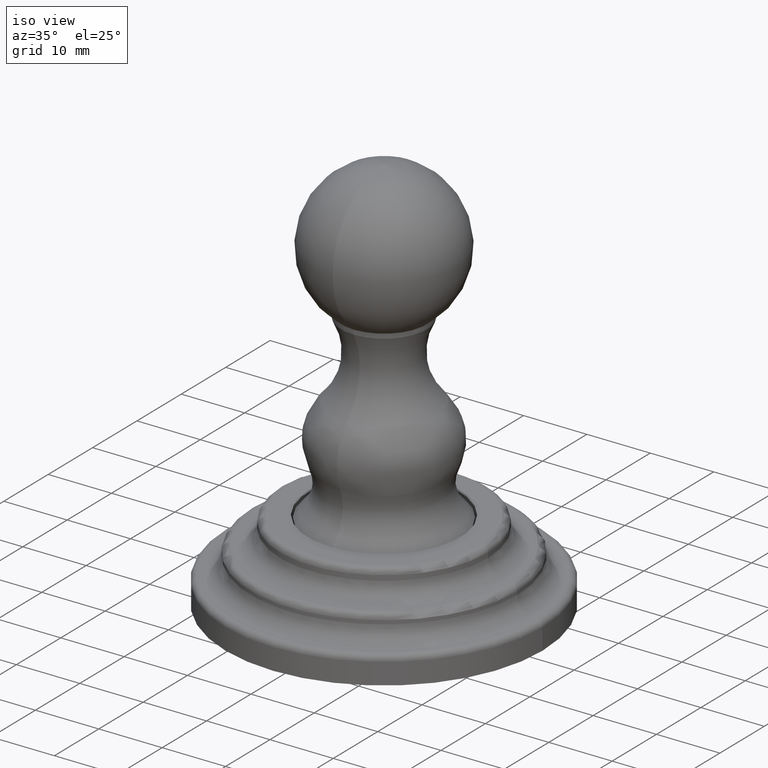
[diagram: clean part render]
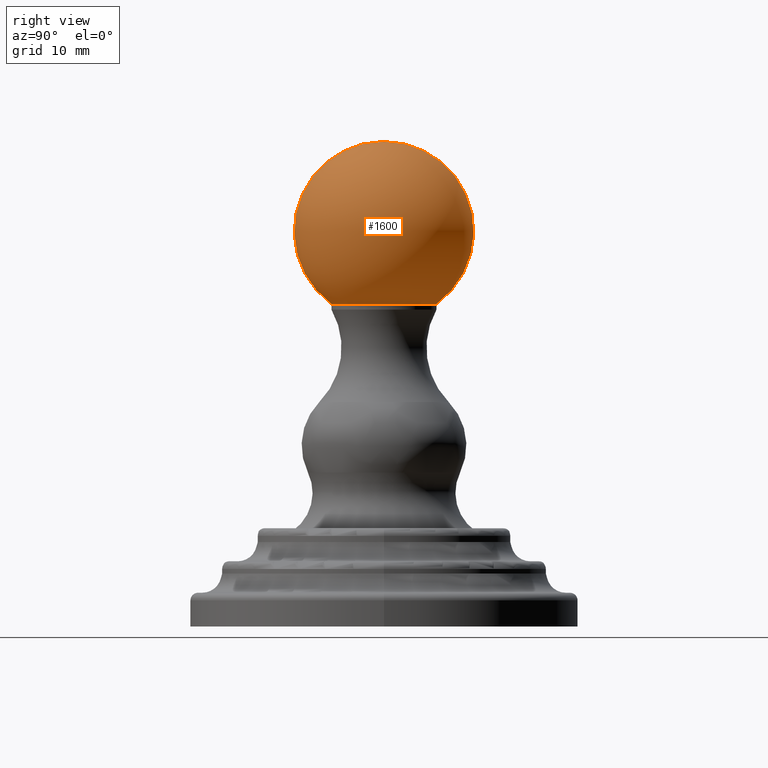
[diagram: tour spotlight — one face highlighted and labeled with its STEP entity id]
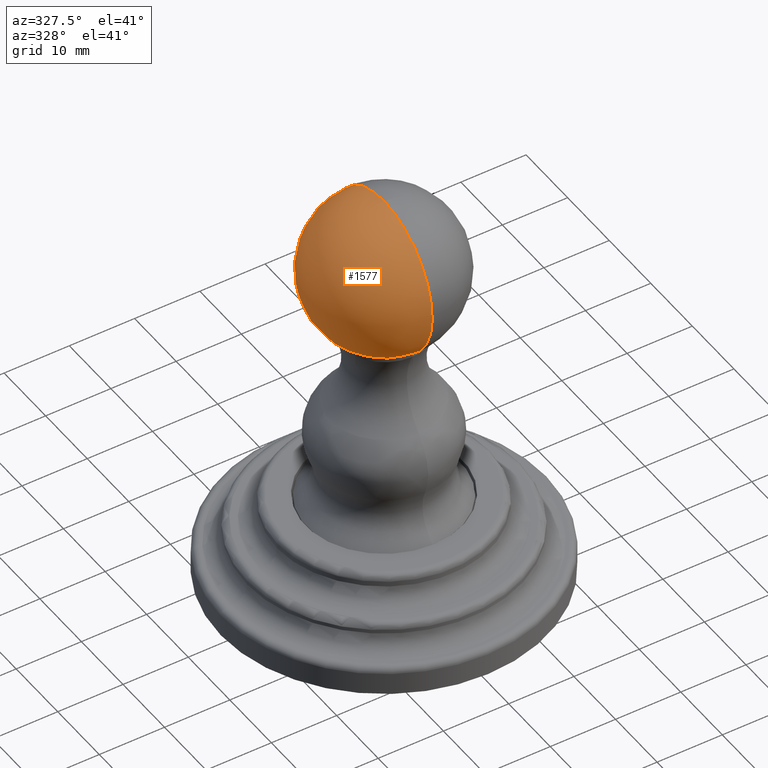
[diagram: tour spotlight — one face highlighted and labeled with its STEP entity id]
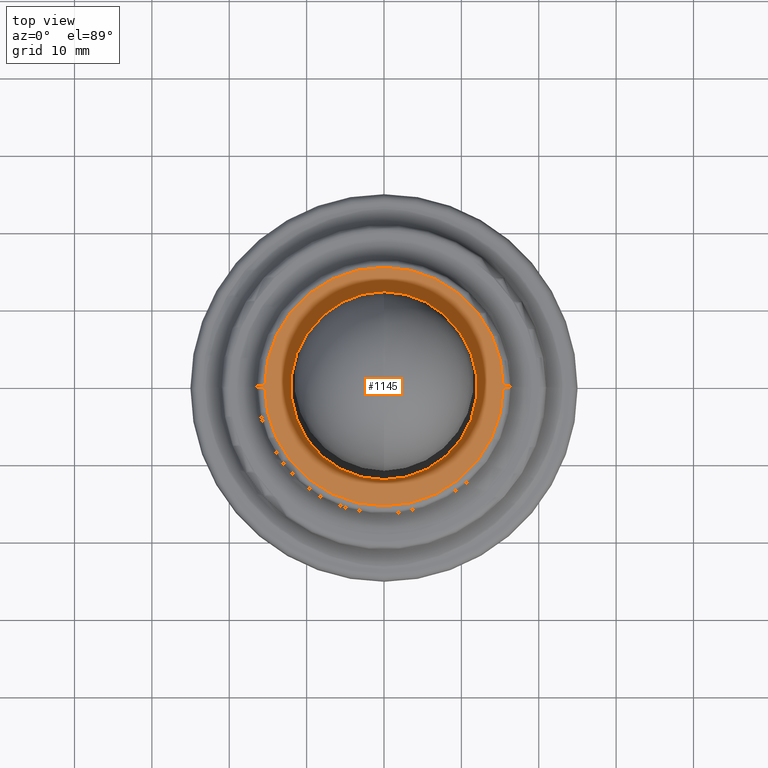
[diagram: tour spotlight — one face highlighted and labeled with its STEP entity id]
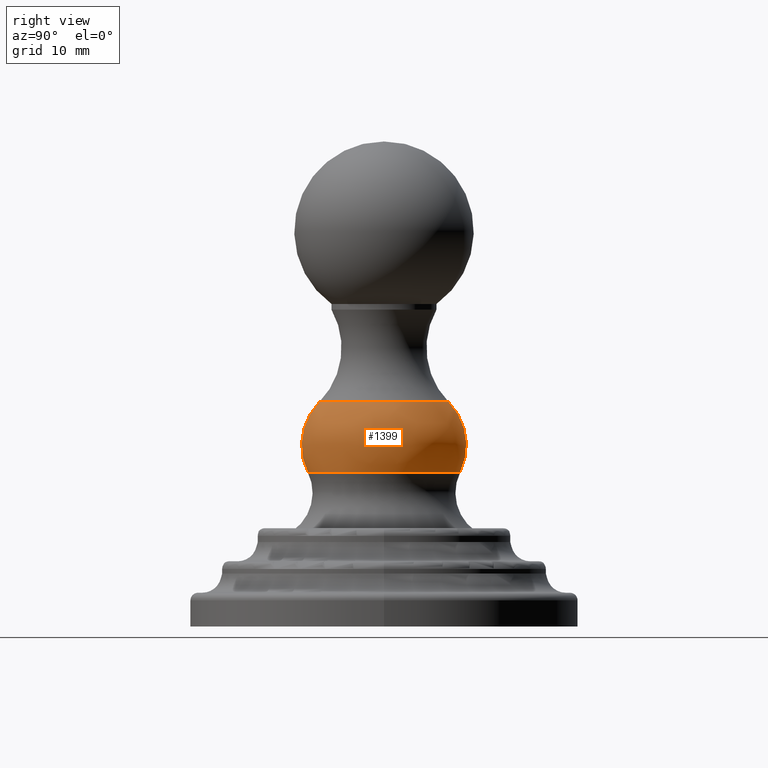
[diagram: tour spotlight — one face highlighted and labeled with its STEP entity id]
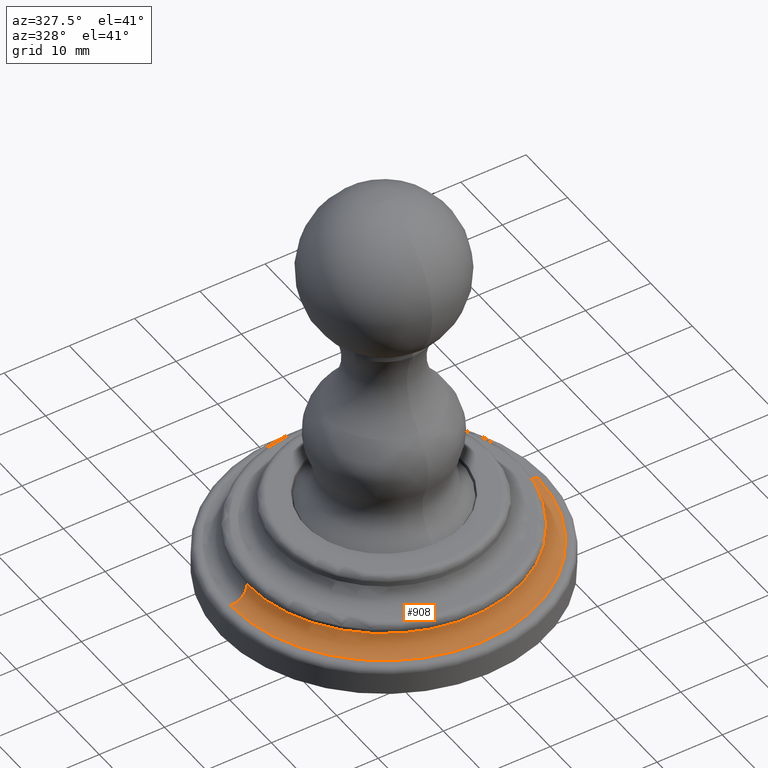
[diagram: tour spotlight — one face highlighted and labeled with its STEP entity id]
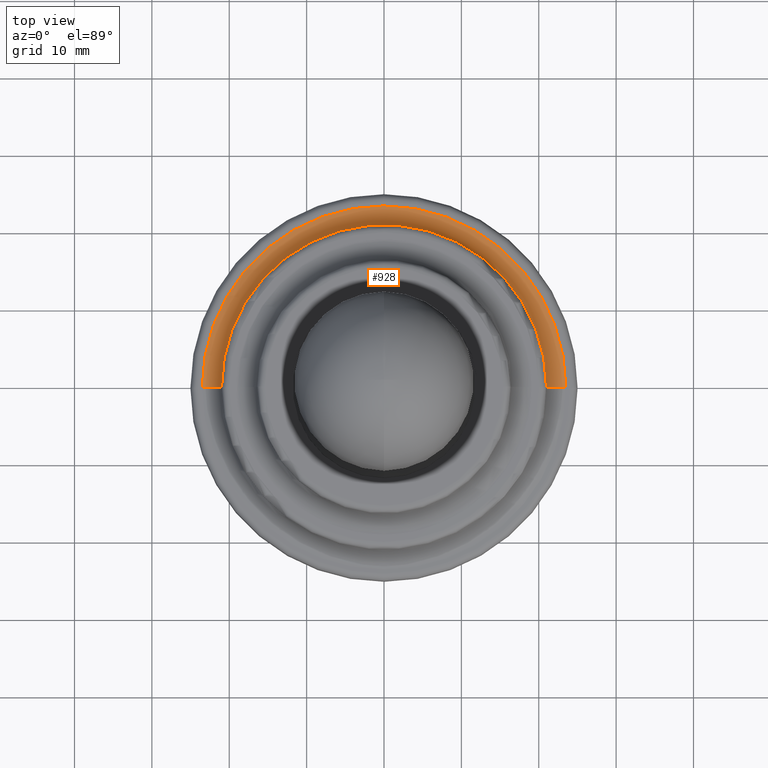
[diagram: tour spotlight — one face highlighted and labeled with its STEP entity id]
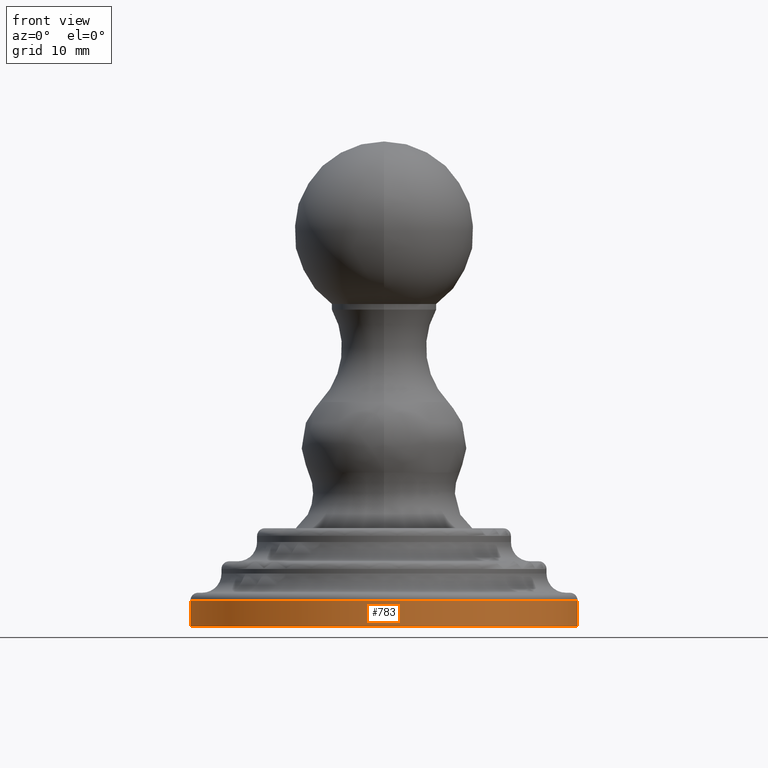
[diagram: tour spotlight — one face highlighted and labeled with its STEP entity id]
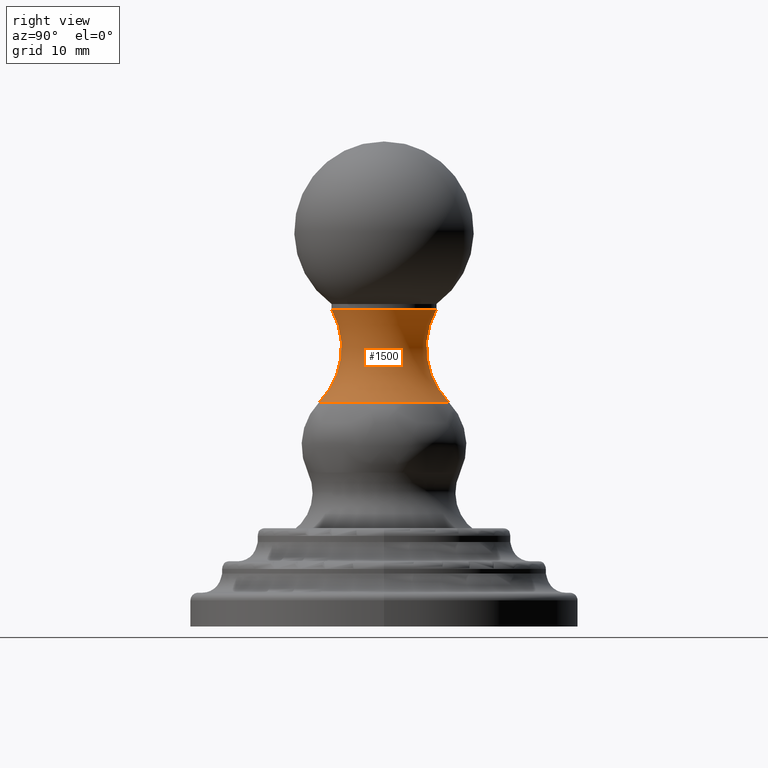
[diagram: tour spotlight — one face highlighted and labeled with its STEP entity id]
A machine part: a face-by-face anatomy tour. The part has 35 B-rep faces; the first image is the clean iso view, then the 8 largest visible faces are spotlighted one at a time (largest first), each with its STEP entity span.

Face 1 — right view, entity #1600. In plain terms, the highlighted spherical surface has radius 11.6 mm.
Definition (entity closure, byte-faithful):
#658=CARTESIAN_POINT('',(0.E0,0.E0,2.011551179109E0));
#659=DIRECTION('',(1.E0,0.E0,0.E0));
#660=DIRECTION('',(0.E0,5.848925070044E-1,-8.111108156412E-1));
#661=AXIS2_PLACEMENT_3D('',#658,#659,#660);
#666=CARTESIAN_POINT('',(0.E0,0.E0,2.011551179109E0));
#667=DIRECTION('',(-1.E0,0.E0,0.E0));
#668=DIRECTION('',(0.E0,-5.848925070044E-1,-8.111108156412E-1));
#669=AXIS2_PLACEMENT_3D('',#666,#667,#668);
#682=CARTESIAN_POINT('',(0.E0,0.E0,1.641122617635E0));
#683=DIRECTION('',(0.E0,0.E0,-1.E0));
#684=DIRECTION('',(0.E0,1.E0,0.E0));
#685=AXIS2_PLACEMENT_3D('',#682,#683,#684);
#750=CARTESIAN_POINT('',(0.E0,2.671162630414E-1,1.641122617635E0));
#751=VERTEX_POINT('',#750);
#752=CARTESIAN_POINT('',(0.E0,0.E0,2.468244092495E0));
#753=VERTEX_POINT('',#752);
#762=CARTESIAN_POINT('',(0.E0,-2.671162630414E-1,1.641122617635E0));
#763=VERTEX_POINT('',#762);
#1590=CARTESIAN_POINT('',(0.E0,0.E0,2.011551179109E0));
#1591=DIRECTION('',(0.E0,0.E0,-1.E0));
#1592=DIRECTION('',(0.E0,-1.E0,0.E0));
#1593=AXIS2_PLACEMENT_3D('',#1590,#1591,#1592);
#1594=SPHERICAL_SURFACE('',#1593,4.566929133858E-1);
#1595=ORIENTED_EDGE('',*,*,#1570,.F.);
#1596=ORIENTED_EDGE('',*,*,#1523,.T.);
#1597=ORIENTED_EDGE('',*,*,#1572,.T.);
#1598=EDGE_LOOP('',(#1595,#1596,#1597));
#1599=FACE_OUTER_BOUND('',#1598,.F.);
#662=CIRCLE('',#661,4.566929133858E-1);
#670=CIRCLE('',#669,4.566929133858E-1);
#686=CIRCLE('',#685,2.671162630414E-1);
#1523=EDGE_CURVE('',#751,#763,#686,.T.);
#1570=EDGE_CURVE('',#751,#753,#662,.T.);
#1572=EDGE_CURVE('',#763,#753,#670,.T.);
#1600=ADVANCED_FACE('',(#1599),#1594,.T.);

Face 2 — auxiliary view, entity #1577. In plain terms, the highlighted spherical surface has radius 11.6 mm.
Definition (entity closure, byte-faithful):
#658=CARTESIAN_POINT('',(0.E0,0.E0,2.011551179109E0));
#659=DIRECTION('',(1.E0,0.E0,0.E0));
#660=DIRECTION('',(0.E0,5.848925070044E-1,-8.111108156412E-1));
#661=AXIS2_PLACEMENT_3D('',#658,#659,#660);
#666=CARTESIAN_POINT('',(0.E0,0.E0,2.011551179109E0));
#667=DIRECTION('',(-1.E0,0.E0,0.E0));
#668=DIRECTION('',(0.E0,-5.848925070044E-1,-8.111108156412E-1));
#669=AXIS2_PLACEMENT_3D('',#666,#667,#668);
#674=CARTESIAN_POINT('',(0.E0,0.E0,1.641122617635E0));
#675=DIRECTION('',(0.E0,0.E0,1.E0));
#676=DIRECTION('',(0.E0,1.E0,0.E0));
#677=AXIS2_PLACEMENT_3D('',#674,#675,#676);
#750=CARTESIAN_POINT('',(0.E0,2.671162630414E-1,1.641122617635E0));
#751=VERTEX_POINT('',#750);
#752=CARTESIAN_POINT('',(0.E0,0.E0,2.468244092495E0));
#753=VERTEX_POINT('',#752);
#762=CARTESIAN_POINT('',(0.E0,-2.671162630414E-1,1.641122617635E0));
#763=VERTEX_POINT('',#762);
#1565=CARTESIAN_POINT('',(0.E0,0.E0,2.011551179109E0));
#1566=DIRECTION('',(0.E0,0.E0,-1.E0));
#1567=DIRECTION('',(0.E0,-1.E0,0.E0));
#1568=AXIS2_PLACEMENT_3D('',#1565,#1566,#1567);
#1569=SPHERICAL_SURFACE('',#1568,4.566929133858E-1);
#1571=ORIENTED_EDGE('',*,*,#1570,.T.);
#1573=ORIENTED_EDGE('',*,*,#1572,.F.);
#1574=ORIENTED_EDGE('',*,*,#1546,.F.);
#1575=EDGE_LOOP('',(#1571,#1573,#1574));
#1576=FACE_OUTER_BOUND('',#1575,.F.);
#662=CIRCLE('',#661,4.566929133858E-1);
#670=CIRCLE('',#669,4.566929133858E-1);
#678=CIRCLE('',#677,2.671162630414E-1);
#1546=EDGE_CURVE('',#751,#763,#678,.T.);
#1570=EDGE_CURVE('',#751,#753,#662,.T.);
#1572=EDGE_CURVE('',#763,#753,#670,.T.);
#1577=ADVANCED_FACE('',(#1576),#1569,.T.);

Face 3 — top view, entity #1145. In plain terms, the highlighted planar face has unit normal (0, 0, 1).
Definition (entity closure, byte-faithful):
#416=CARTESIAN_POINT('',(-1.230769033143E-14,0.E0,5.E-1));
#417=DIRECTION('',(0.E0,0.E0,1.E0));
#418=DIRECTION('',(-1.E0,0.E0,0.E0));
#419=AXIS2_PLACEMENT_3D('',#416,#417,#418);
#424=CARTESIAN_POINT('',(-1.230769033143E-14,0.E0,5.E-1));
#425=DIRECTION('',(0.E0,0.E0,1.E0));
#426=DIRECTION('',(1.E0,0.E0,0.E0));
#427=AXIS2_PLACEMENT_3D('',#424,#425,#426);
#432=CARTESIAN_POINT('',(0.E0,0.E0,5.E-1));
#433=DIRECTION('',(0.E0,0.E0,1.E0));
#434=DIRECTION('',(0.E0,-1.E0,0.E0));
#435=AXIS2_PLACEMENT_3D('',#432,#433,#434);
#440=CARTESIAN_POINT('',(0.E0,0.E0,5.E-1));
#441=DIRECTION('',(0.E0,0.E0,1.E0));
#442=DIRECTION('',(0.E0,1.E0,0.E0));
#443=AXIS2_PLACEMENT_3D('',#440,#441,#442);
#722=CARTESIAN_POINT('',(-6.07E-1,0.E0,5.E-1));
#723=CARTESIAN_POINT('',(6.07E-1,0.E0,5.E-1));
#724=VERTEX_POINT('',#722);
#725=VERTEX_POINT('',#723);
#738=CARTESIAN_POINT('',(0.E0,-4.74E-1,5.E-1));
#739=CARTESIAN_POINT('',(0.E0,4.74E-1,5.E-1));
#740=VERTEX_POINT('',#738);
#741=VERTEX_POINT('',#739);
#1129=CARTESIAN_POINT('',(-1.230769033143E-14,0.E0,5.E-1));
#1130=DIRECTION('',(0.E0,0.E0,1.E0));
#1131=DIRECTION('',(-1.E0,0.E0,0.E0));
#1132=AXIS2_PLACEMENT_3D('',#1129,#1130,#1131);
#1133=PLANE('',#1132);
#1135=ORIENTED_EDGE('',*,*,#1134,.F.);
#1136=ORIENTED_EDGE('',*,*,#1112,.F.);
#1137=EDGE_LOOP('',(#1135,#1136));
#1138=FACE_OUTER_BOUND('',#1137,.F.);
#1140=ORIENTED_EDGE('',*,*,#1139,.T.);
#1142=ORIENTED_EDGE('',*,*,#1141,.T.);
#1143=EDGE_LOOP('',(#1140,#1142));
#1144=FACE_BOUND('',#1143,.F.);
#420=CIRCLE('',#419,6.07E-1);
#428=CIRCLE('',#427,6.07E-1);
#436=CIRCLE('',#435,4.74E-1);
#444=CIRCLE('',#443,4.74E-1);
#1112=EDGE_CURVE('',#725,#724,#428,.T.);
#1134=EDGE_CURVE('',#724,#725,#420,.T.);
#1139=EDGE_CURVE('',#740,#741,#436,.T.);
#1141=EDGE_CURVE('',#741,#740,#444,.T.);
#1145=ADVANCED_FACE('',(#1138,#1144),#1133,.T.);

Face 4 — right view, entity #1399. In plain terms, the highlighted face is a freeform B-spline surface patch.
Definition (entity closure, byte-faithful):
#564=CARTESIAN_POINT('',(0.E0,0.E0,7.839705129660E-1));
#565=DIRECTION('',(0.E0,0.E0,-1.E0));
#566=DIRECTION('',(0.E0,1.E0,0.E0));
#567=AXIS2_PLACEMENT_3D('',#564,#565,#566);
#572=CARTESIAN_POINT('',(0.E0,1.041910873487E-1,9.220305738123E-1));
#573=DIRECTION('',(1.E0,0.E0,0.E0));
#574=DIRECTION('',(0.E0,8.988088988744E-1,-4.383406931876E-1));
#575=AXIS2_PLACEMENT_3D('',#572,#573,#574);
#580=CARTESIAN_POINT('',(0.E0,-1.041910873487E-1,9.220305738123E-1));
#581=DIRECTION('',(-1.E0,0.E0,0.E0));
#582=DIRECTION('',(0.E0,-8.988088988744E-1,-4.383406931876E-1));
#583=AXIS2_PLACEMENT_3D('',#580,#581,#582);
#620=CARTESIAN_POINT('',(0.E0,0.E0,1.142747808153E0));
#621=DIRECTION('',(0.E0,0.E0,-1.E0));
#622=DIRECTION('',(0.E0,1.E0,0.E0));
#623=AXIS2_PLACEMENT_3D('',#620,#621,#622);
#743=CARTESIAN_POINT('',(0.E0,3.872805043167E-1,7.839705129660E-1));
#745=VERTEX_POINT('',#743);
#746=CARTESIAN_POINT('',(0.E0,3.288777599953E-1,1.142747808153E0));
#747=VERTEX_POINT('',#746);
#755=CARTESIAN_POINT('',(0.E0,-3.872805043167E-1,7.839705129660E-1));
#757=VERTEX_POINT('',#755);
#758=CARTESIAN_POINT('',(0.E0,-3.288777599953E-1,1.142747808153E0));
#759=VERTEX_POINT('',#758);
#1361=CARTESIAN_POINT('',(-2.030517335353E-2,3.227414884302E-1,
1.148208805471E0));
#1362=CARTESIAN_POINT('',(-2.681549288007E-2,4.262200540926E-1,
1.047729824582E0));
#1363=CARTESIAN_POINT('',(-2.827208170864E-2,4.493718705474E-1,
9.052233504963E-1));
#1364=CARTESIAN_POINT('',(-2.409889000515E-2,3.830408878742E-1,
7.770476561504E-1));
#1365=CARTESIAN_POINT('',(1.783094859161E-1,3.352372636298E-1,
1.148208805471E0));
#1366=CARTESIAN_POINT('',(2.354797305486E-1,4.427222707968E-1,
1.047729824582E0));
#1367=CARTESIAN_POINT('',(2.482707370912E-1,4.667704699736E-1,
9.052233504963E-1));
#1368=CARTESIAN_POINT('',(2.116239351003E-1,3.978713109798E-1,
7.770476561504E-1));
#1369=CARTESIAN_POINT('',(3.233796042100E-1,1.990073548255E-1,
1.148208805471E0));
#1370=CARTESIAN_POINT('',(4.270627649059E-1,2.628138264811E-1,
1.047729824582E0));
#1371=CARTESIAN_POINT('',(4.502603565088E-1,2.770895918142E-1,
9.052233504963E-1));
#1372=CARTESIAN_POINT('',(3.837982260029E-1,2.361888899275E-1,
7.770476561504E-1));
#1373=CARTESIAN_POINT('',(3.233796042100E-1,0.E0,1.148208805471E0));
#1374=CARTESIAN_POINT('',(4.270627649059E-1,0.E0,1.047729824582E0));
#1375=CARTESIAN_POINT('',(4.502603565088E-1,0.E0,9.052233504963E-1));
#1376=CARTESIAN_POINT('',(3.837982260029E-1,0.E0,7.770476561504E-1));
#1377=CARTESIAN_POINT('',(3.233796042100E-1,-1.990073548255E-1,
1.148208805471E0));
#1378=CARTESIAN_POINT('',(4.270627649059E-1,-2.628138264811E-1,
1.047729824582E0));
#1379=CARTESIAN_POINT('',(4.502603565088E-1,-2.770895918142E-1,
9.052233504963E-1));
#1380=CARTESIAN_POINT('',(3.837982260029E-1,-2.361888899275E-1,
7.770476561504E-1));
#1381=CARTESIAN_POINT('',(1.783094859161E-1,-3.352372636298E-1,
1.148208805471E0));
#1382=CARTESIAN_POINT('',(2.354797305486E-1,-4.427222707968E-1,
1.047729824582E0));
#1383=CARTESIAN_POINT('',(2.482707370912E-1,-4.667704699736E-1,
9.052233504963E-1));
#1384=CARTESIAN_POINT('',(2.116239351003E-1,-3.978713109798E-1,
7.770476561504E-1));
#1385=CARTESIAN_POINT('',(-2.030517335353E-2,-3.227414884302E-1,
1.148208805471E0));
#1386=CARTESIAN_POINT('',(-2.681549288007E-2,-4.262200540926E-1,
1.047729824582E0));
#1387=CARTESIAN_POINT('',(-2.827208170864E-2,-4.493718705474E-1,
9.052233504963E-1));
#1388=CARTESIAN_POINT('',(-2.409889000515E-2,-3.830408878742E-1,
7.770476561504E-1));
#1389=(BOUNDED_SURFACE()B_SPLINE_SURFACE(3,3,((#1361,#1362,#1363,#1364),(#1365,
#1366,#1367,#1368),(#1369,#1370,#1371,#1372),(#1373,#1374,#1375,#1376),(#1377,
#1378,#1379,#1380),(#1381,#1382,#1383,#1384),(#1385,#1386,#1387,#1388)),
.UNSPECIFIED.,.F.,.F.,.F.)B_SPLINE_SURFACE_WITH_KNOTS((4,3,4),(4,4),(0.E0,1.E0,
2.E0),(0.E0,1.E0),.UNSPECIFIED.)GEOMETRIC_REPRESENTATION_ITEM()RATIONAL_B_SPLINE_SURFACE(((1.317526105296E0,1.143841608227E0,1.143841608227E0,1.317526105296E0),(
1.040447823343E0,9.032895111105E-1,9.032895111105E-1,1.040447823343E0),(
1.040447823343E0,9.032895111105E-1,9.032895111105E-1,1.040447823343E0),(
1.317526105296E0,1.143841608227E0,1.143841608227E0,1.317526105296E0),(
1.040447823343E0,9.032895111105E-1,9.032895111105E-1,1.040447823343E0),(
1.040447823343E0,9.032895111105E-1,9.032895111105E-1,1.040447823343E0),(
1.317526105296E0,1.143841608227E0,1.143841608227E0,1.317526105296E0)))REPRESENTATION_ITEM('')SURFACE());
#1391=ORIENTED_EDGE('',*,*,#1390,.F.);
#1392=ORIENTED_EDGE('',*,*,#1344,.T.);
#1394=ORIENTED_EDGE('',*,*,#1393,.T.);
#1396=ORIENTED_EDGE('',*,*,#1395,.F.);
#1397=EDGE_LOOP('',(#1391,#1392,#1394,#1396));
#1398=FACE_OUTER_BOUND('',#1397,.F.);
#568=CIRCLE('',#567,3.872805043167E-1);
#576=CIRCLE('',#575,3.149606299209E-1);
#584=CIRCLE('',#583,3.149606299209E-1);
#624=CIRCLE('',#623,3.288777599953E-1);
#1344=EDGE_CURVE('',#745,#757,#568,.T.);
#1390=EDGE_CURVE('',#745,#747,#576,.T.);
#1393=EDGE_CURVE('',#757,#759,#584,.T.);
#1395=EDGE_CURVE('',#747,#759,#624,.T.);
#1399=ADVANCED_FACE('',(#1398),#1389,.T.);

Face 5 — auxiliary view, entity #908. In plain terms, the highlighted toroidal blend (fillet) surface has major radius 23.495 mm and minor (blend) radius 2.4892 mm.
Definition (entity closure, byte-faithful):
#236=CARTESIAN_POINT('',(-1.226752191642E-14,0.E0,1.72E-1));
#237=DIRECTION('',(0.E0,0.E0,1.E0));
#238=DIRECTION('',(-1.E0,0.E0,0.E0));
#239=AXIS2_PLACEMENT_3D('',#236,#237,#238);
#244=CARTESIAN_POINT('',(-9.25E-1,0.E0,2.7E-1));
#245=DIRECTION('',(0.E0,-1.E0,0.E0));
#246=DIRECTION('',(0.E0,0.E0,-1.E0));
#247=AXIS2_PLACEMENT_3D('',#244,#245,#246);
#260=CARTESIAN_POINT('',(9.25E-1,0.E0,2.7E-1));
#261=DIRECTION('',(0.E0,1.E0,0.E0));
#262=DIRECTION('',(0.E0,0.E0,-1.E0));
#263=AXIS2_PLACEMENT_3D('',#260,#261,#262);
#338=CARTESIAN_POINT('',(-1.227952345505E-14,0.E0,2.7E-1));
#339=DIRECTION('',(0.E0,0.E0,1.E0));
#340=DIRECTION('',(-1.E0,0.E0,0.E0));
#341=AXIS2_PLACEMENT_3D('',#338,#339,#340);
#690=CARTESIAN_POINT('',(-9.25E-1,0.E0,1.72E-1));
#691=CARTESIAN_POINT('',(-8.27E-1,0.E0,2.7E-1));
#692=VERTEX_POINT('',#690);
#693=VERTEX_POINT('',#691);
#698=CARTESIAN_POINT('',(9.25E-1,0.E0,1.72E-1));
#699=CARTESIAN_POINT('',(8.27E-1,0.E0,2.7E-1));
#700=VERTEX_POINT('',#698);
#701=VERTEX_POINT('',#699);
#894=CARTESIAN_POINT('',(-1.227952345505E-14,0.E0,2.7E-1));
#895=DIRECTION('',(0.E0,0.E0,1.E0));
#896=DIRECTION('',(-1.E0,0.E0,0.E0));
#897=AXIS2_PLACEMENT_3D('',#894,#895,#896);
#898=TOROIDAL_SURFACE('',#897,9.25E-1,9.8E-2);
#900=ORIENTED_EDGE('',*,*,#899,.T.);
#902=ORIENTED_EDGE('',*,*,#901,.T.);
#904=ORIENTED_EDGE('',*,*,#903,.F.);
#905=ORIENTED_EDGE('',*,*,#823,.F.);
#906=EDGE_LOOP('',(#900,#902,#904,#905));
#907=FACE_OUTER_BOUND('',#906,.F.);
#240=CIRCLE('',#239,9.25E-1);
#248=CIRCLE('',#247,9.8E-2);
#264=CIRCLE('',#263,9.8E-2);
#342=CIRCLE('',#341,8.27E-1);
#823=EDGE_CURVE('',#692,#700,#240,.T.);
#899=EDGE_CURVE('',#692,#693,#248,.T.);
#901=EDGE_CURVE('',#693,#701,#342,.T.);
#903=EDGE_CURVE('',#700,#701,#264,.T.);
#908=ADVANCED_FACE('',(#907),#898,.F.);

Face 6 — top view, entity #928. In plain terms, the highlighted toroidal blend (fillet) surface has major radius 23.495 mm and minor (blend) radius 2.4892 mm.
Definition (entity closure, byte-faithful):
#244=CARTESIAN_POINT('',(-9.25E-1,0.E0,2.7E-1));
#245=DIRECTION('',(0.E0,-1.E0,0.E0));
#246=DIRECTION('',(0.E0,0.E0,-1.E0));
#247=AXIS2_PLACEMENT_3D('',#244,#245,#246);
#252=CARTESIAN_POINT('',(-1.226752191642E-14,0.E0,1.72E-1));
#253=DIRECTION('',(0.E0,0.E0,-1.E0));
#254=DIRECTION('',(-1.E0,0.E0,0.E0));
#255=AXIS2_PLACEMENT_3D('',#252,#253,#254);
#260=CARTESIAN_POINT('',(9.25E-1,0.E0,2.7E-1));
#261=DIRECTION('',(0.E0,1.E0,0.E0));
#262=DIRECTION('',(0.E0,0.E0,-1.E0));
#263=AXIS2_PLACEMENT_3D('',#260,#261,#262);
#283=CARTESIAN_POINT('',(-1.227952345505E-14,0.E0,2.7E-1));
#284=DIRECTION('',(0.E0,0.E0,-1.E0));
#285=DIRECTION('',(-1.E0,0.E0,0.E0));
#286=AXIS2_PLACEMENT_3D('',#283,#284,#285);
#690=CARTESIAN_POINT('',(-9.25E-1,0.E0,1.72E-1));
#691=CARTESIAN_POINT('',(-8.27E-1,0.E0,2.7E-1));
#692=VERTEX_POINT('',#690);
#693=VERTEX_POINT('',#691);
#698=CARTESIAN_POINT('',(9.25E-1,0.E0,1.72E-1));
#699=CARTESIAN_POINT('',(8.27E-1,0.E0,2.7E-1));
#700=VERTEX_POINT('',#698);
#701=VERTEX_POINT('',#699);
#916=CARTESIAN_POINT('',(-1.227952345505E-14,0.E0,2.7E-1));
#917=DIRECTION('',(0.E0,0.E0,1.E0));
#918=DIRECTION('',(-1.E0,0.E0,0.E0));
#919=AXIS2_PLACEMENT_3D('',#916,#917,#918);
#920=TOROIDAL_SURFACE('',#919,9.25E-1,9.8E-2);
#921=ORIENTED_EDGE('',*,*,#899,.F.);
#922=ORIENTED_EDGE('',*,*,#825,.T.);
#923=ORIENTED_EDGE('',*,*,#903,.T.);
#925=ORIENTED_EDGE('',*,*,#924,.F.);
#926=EDGE_LOOP('',(#921,#922,#923,#925));
#927=FACE_OUTER_BOUND('',#926,.F.);
#248=CIRCLE('',#247,9.8E-2);
#256=CIRCLE('',#255,9.25E-1);
#264=CIRCLE('',#263,9.8E-2);
#287=CIRCLE('',#286,8.27E-1);
#825=EDGE_CURVE('',#692,#700,#256,.T.);
#899=EDGE_CURVE('',#692,#693,#248,.T.);
#903=EDGE_CURVE('',#700,#701,#264,.T.);
#924=EDGE_CURVE('',#693,#701,#287,.T.);
#928=ADVANCED_FACE('',(#927),#920,.F.);

Face 7 — front view, entity #783. In plain terms, the highlighted cylindrical surface (partial cylindrical patch) has radius 25.019 mm, axis along (0, 0, 1).
Definition (entity closure, byte-faithful):
#157=CARTESIAN_POINT('',(-1.226274579390E-14,0.E0,1.33E-1));
#158=DIRECTION('',(0.E0,0.E0,1.E0));
#159=DIRECTION('',(-1.E0,0.E0,0.E0));
#160=AXIS2_PLACEMENT_3D('',#157,#158,#159);
#166=CARTESIAN_POINT('',(-1.224645799147E-14,0.E0,0.E0));
#167=DIRECTION('',(0.E0,0.E0,1.E0));
#168=DIRECTION('',(-1.E0,0.E0,0.E0));
#169=AXIS2_PLACEMENT_3D('',#166,#167,#168);
#214=DIRECTION('',(0.E0,4.781184846532E-13,1.E0));
#215=VECTOR('',#214,1.33E-1);
#216=CARTESIAN_POINT('',(-9.85E-1,0.E0,0.E0));
#217=LINE('',#216,#215);
#229=DIRECTION('',(0.E0,-4.798041228459E-13,1.E0));
#230=VECTOR('',#229,1.33E-1);
#231=CARTESIAN_POINT('',(9.85E-1,0.E0,0.E0));
#232=LINE('',#231,#230);
#710=CARTESIAN_POINT('',(-9.85E-1,0.E0,1.33E-1));
#711=CARTESIAN_POINT('',(9.85E-1,0.E0,1.33E-1));
#712=VERTEX_POINT('',#710);
#713=VERTEX_POINT('',#711);
#730=CARTESIAN_POINT('',(-9.85E-1,0.E0,0.E0));
#731=VERTEX_POINT('',#730);
#732=CARTESIAN_POINT('',(9.85E-1,0.E0,0.E0));
#733=VERTEX_POINT('',#732);
#768=CARTESIAN_POINT('',(-1.224339637448E-14,0.E0,-2.5E-2));
#769=DIRECTION('',(0.E0,0.E0,1.E0));
#770=DIRECTION('',(-1.E0,0.E0,0.E0));
#771=AXIS2_PLACEMENT_3D('',#768,#769,#770);
#772=CYLINDRICAL_SURFACE('',#771,9.85E-1);
#774=ORIENTED_EDGE('',*,*,#773,.T.);
#776=ORIENTED_EDGE('',*,*,#775,.F.);
#778=ORIENTED_EDGE('',*,*,#777,.F.);
#780=ORIENTED_EDGE('',*,*,#779,.T.);
#781=EDGE_LOOP('',(#774,#776,#778,#780));
#782=FACE_OUTER_BOUND('',#781,.F.);
#161=CIRCLE('',#160,9.85E-1);
#170=CIRCLE('',#169,9.85E-1);
#773=EDGE_CURVE('',#712,#713,#161,.T.);
#775=EDGE_CURVE('',#733,#713,#232,.T.);
#777=EDGE_CURVE('',#731,#733,#170,.T.);
#779=EDGE_CURVE('',#731,#712,#217,.T.);
#783=ADVANCED_FACE('',(#782),#772,.T.);

Face 8 — right view, entity #1500. In plain terms, the highlighted toroidal blend (fillet) surface has major radius 15.4873 mm and minor (blend) radius 10 mm.
Definition (entity closure, byte-faithful):
#596=CARTESIAN_POINT('',(0.E0,6.097361008040E-1,1.418644351080E0));
#597=DIRECTION('',(-1.E0,0.E0,0.E0));
#598=DIRECTION('',(0.E0,-7.133801856540E-1,-7.007772190334E-1));
#599=AXIS2_PLACEMENT_3D('',#596,#597,#598);
#604=CARTESIAN_POINT('',(0.E0,-6.097361008040E-1,1.418644351080E0));
#605=DIRECTION('',(1.E0,0.E0,0.E0));
#606=DIRECTION('',(0.E0,7.133801856540E-1,-7.007772190334E-1));
#607=AXIS2_PLACEMENT_3D('',#604,#605,#606);
#620=CARTESIAN_POINT('',(0.E0,0.E0,1.142747808153E0));
#621=DIRECTION('',(0.E0,0.E0,-1.E0));
#622=DIRECTION('',(0.E0,1.E0,0.E0));
#623=AXIS2_PLACEMENT_3D('',#620,#621,#622);
#628=CARTESIAN_POINT('',(0.E0,0.E0,1.612582374098E0));
#629=DIRECTION('',(0.E0,0.E0,-1.E0));
#630=DIRECTION('',(0.E0,1.E0,0.E0));
#631=AXIS2_PLACEMENT_3D('',#628,#629,#630);
#746=CARTESIAN_POINT('',(0.E0,3.288777599953E-1,1.142747808153E0));
#747=VERTEX_POINT('',#746);
#748=CARTESIAN_POINT('',(0.E0,2.671162630414E-1,1.612582374098E0));
#749=VERTEX_POINT('',#748);
#758=CARTESIAN_POINT('',(0.E0,-3.288777599953E-1,1.142747808153E0));
#759=VERTEX_POINT('',#758);
#760=CARTESIAN_POINT('',(0.E0,-2.671162630414E-1,1.612582374098E0));
#761=VERTEX_POINT('',#760);
#1488=CARTESIAN_POINT('',(0.E0,0.E0,1.418644351080E0));
#1489=DIRECTION('',(0.E0,0.E0,-1.E0));
#1490=DIRECTION('',(0.E0,-1.E0,0.E0));
#1491=AXIS2_PLACEMENT_3D('',#1488,#1489,#1490);
#1492=TOROIDAL_SURFACE('',#1491,6.097361008040E-1,3.937007874016E-1);
#1493=ORIENTED_EDGE('',*,*,#1466,.F.);
#1494=ORIENTED_EDGE('',*,*,#1395,.T.);
#1495=ORIENTED_EDGE('',*,*,#1470,.T.);
#1497=ORIENTED_EDGE('',*,*,#1496,.F.);
#1498=EDGE_LOOP('',(#1493,#1494,#1495,#1497));
#1499=FACE_OUTER_BOUND('',#1498,.F.);
#600=CIRCLE('',#599,3.937007874016E-1);
#608=CIRCLE('',#607,3.937007874016E-1);
#624=CIRCLE('',#623,3.288777599953E-1);
#632=CIRCLE('',#631,2.671162630414E-1);
#1395=EDGE_CURVE('',#747,#759,#624,.T.);
#1466=EDGE_CURVE('',#747,#749,#600,.T.);
#1470=EDGE_CURVE('',#759,#761,#608,.T.);
#1496=EDGE_CURVE('',#749,#761,#632,.T.);
#1500=ADVANCED_FACE('',(#1499),#1492,.F.);